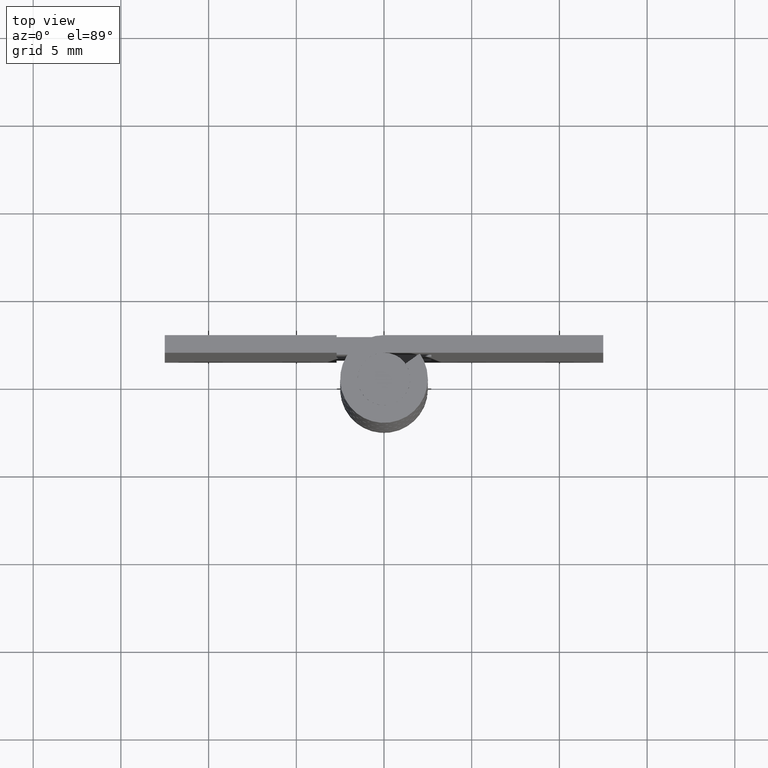
[diagram: clean part render]
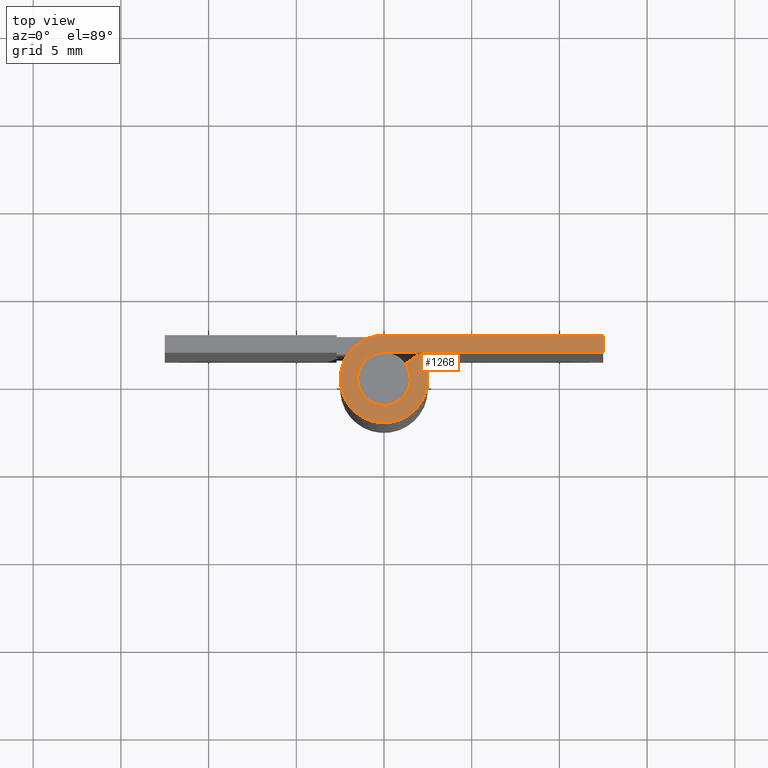
[diagram: same view with one face highlighted and labeled with its STEP entity id]
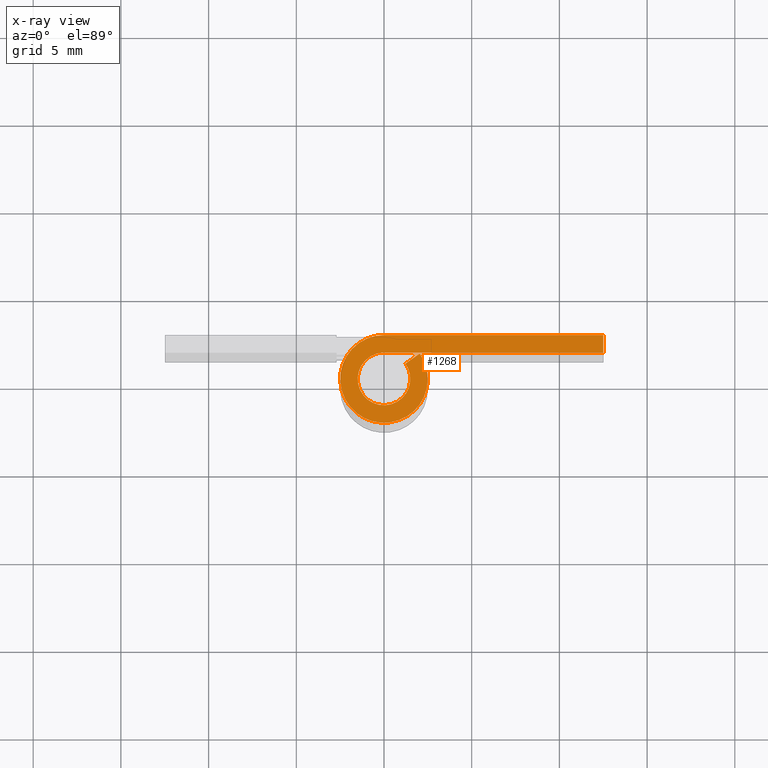
[diagram: x-ray of the same camera — body ghosted, the highlighted face saturated]
A machine part, top view. The second image highlights one B-rep face of the part: STEP entity #1268.
The next image is the same camera in x-ray: the body ghosted, the highlighted face saturated — about 0% of this face is hidden behind the body in this view.
In plain terms, the highlighted face is a freeform B-spline surface patch.
Its self-contained STEP definition (entity closure, byte-faithful):
#1191=CARTESIAN_POINT('',(-3.248181664563291,-2.745475684649778,33.0));
#1192=CARTESIAN_POINT('',(13.249199549952991,-2.745475684649778,33.0));
#1193=CARTESIAN_POINT('',(-3.248181664563291,2.749546779808365,33.0));
#1194=CARTESIAN_POINT('',(13.249199549952991,2.749546779808365,33.0));
#1195=B_SPLINE_SURFACE_WITH_KNOTS('',1,1,((#1191,#1193),(#1192,#1194)),.UNSPECIFIED.,.F.,.F.,.U.,(2,2),(2,2),(0.0,16.497381214516281),(0.0,5.495022464458143),.UNSPECIFIED.);
#1196=CARTESIAN_POINT('',(12.500000000000000,1.500000000000000,33.0));
#1197=VERTEX_POINT('',#1196);
#1198=CARTESIAN_POINT('',(12.500000000000000,2.500000000000000,33.0));
#1199=VERTEX_POINT('',#1198);
#1200=CARTESIAN_POINT('',(12.500000000000000,1.500000000000000,33.0));
#1201=CARTESIAN_POINT('',(12.500000000000000,2.500000000000000,33.0));
#1202=QUASI_UNIFORM_CURVE('',1,(#1200,#1201),.UNSPECIFIED.,.F.,.U.);
#1203=EDGE_CURVE('',#1197,#1199,#1202,.T.);
#1204=ORIENTED_EDGE('',*,*,#1203,.T.);
#1205=CARTESIAN_POINT('',(0.0,2.500000000000000,33.0));
#1206=VERTEX_POINT('',#1205);
#1207=CARTESIAN_POINT('',(12.500000000000000,2.500000000000000,33.0));
#1208=CARTESIAN_POINT('',(0.0,2.500000000000000,33.0));
#1209=QUASI_UNIFORM_CURVE('',1,(#1207,#1208),.UNSPECIFIED.,.F.,.U.);
#1210=EDGE_CURVE('',#1199,#1206,#1209,.T.);
#1211=ORIENTED_EDGE('',*,*,#1210,.T.);
#1212=CARTESIAN_POINT('',(2.036541185441630,1.450000000000000,33.0));
#1213=VERTEX_POINT('',#1212);
#1214=CARTESIAN_POINT('',(2.036541185441630,1.450000000000000,33.0));
#1215=CARTESIAN_POINT('',(3.176813295694007,-0.151524906992693,33.0));
#1216=CARTESIAN_POINT('',(1.889288151888372,-1.637250829633083,33.0));
#1217=CARTESIAN_POINT('',(0.601763008082737,-3.122976752273475,33.0));
#1218=CARTESIAN_POINT('',(-1.145643923738960,-2.222048604328898,33.0));
#1219=CARTESIAN_POINT('',(-2.893050855560658,-1.321120456384321,33.0));
#1220=CARTESIAN_POINT('',(-2.429518626273757,0.589439771807841,33.0));
#1221=CARTESIAN_POINT('',(-1.965986396986856,2.500000000000000,33.0));
#1222=CARTESIAN_POINT('',(0.0,2.500000000000000,33.0));
#1230=(BOUNDED_CURVE()B_SPLINE_CURVE(2,(#1214,#1215,#1216,#1217,#1218,#1219,#1220,#1221,#1222),.UNSPECIFIED.,.F.,.U.)B_SPLINE_CURVE_WITH_KNOTS((3,2,2,2,3),(0.0,0.250000000000000,0.500000000000000,0.750000000000000,1.0),.UNSPECIFIED.)CURVE()GEOMETRIC_REPRESENTATION_ITEM()RATIONAL_B_SPLINE_CURVE((1.0,0.786058492964466,1.0,0.786058492964466,1.0,0.786058492964466,1.0,0.786058492964466,1.0))REPRESENTATION_ITEM(''));
#1231=EDGE_CURVE('',#1213,#1206,#1230,.T.);
#1232=ORIENTED_EDGE('',*,*,#1231,.F.);
#1233=CARTESIAN_POINT('',(1.221924711264978,0.870000000000000,33.0));
#1234=VERTEX_POINT('',#1233);
#1235=CARTESIAN_POINT('',(2.036541185441630,1.450000000000000,33.0));
#1236=CARTESIAN_POINT('',(1.221924711264978,0.870000000000000,33.0));
#1237=QUASI_UNIFORM_CURVE('',1,(#1235,#1236),.UNSPECIFIED.,.F.,.U.);
#1238=EDGE_CURVE('',#1213,#1234,#1237,.T.);
#1239=ORIENTED_EDGE('',*,*,#1238,.T.);
#1240=CARTESIAN_POINT('',(-2.755364E-016,1.500000000000000,33.0));
#1241=VERTEX_POINT('',#1240);
#1242=CARTESIAN_POINT('',(1.221924711264978,0.870000000000000,33.0));
#1243=CARTESIAN_POINT('',(1.906087977416405,-0.090914944195615,33.0));
#1244=CARTESIAN_POINT('',(1.133572891133023,-0.982350497779850,33.0));
#1245=CARTESIAN_POINT('',(0.361057804849643,-1.873786051364085,33.0));
#1246=CARTESIAN_POINT('',(-0.687386354243376,-1.333229162597339,33.0));
#1247=CARTESIAN_POINT('',(-1.735830513336394,-0.792672273830592,33.0));
#1248=CARTESIAN_POINT('',(-1.457711175764254,0.353663863084705,33.0));
#1249=CARTESIAN_POINT('',(-1.179591838192113,1.500000000000001,33.0));
#1250=CARTESIAN_POINT('',(0.0,1.500000000000000,33.0));
#1258=(BOUNDED_CURVE()B_SPLINE_CURVE(2,(#1242,#1243,#1244,#1245,#1246,#1247,#1248,#1249,#1250),.UNSPECIFIED.,.F.,.U.)B_SPLINE_CURVE_WITH_KNOTS((3,2,2,2,3),(0.0,0.250000000000000,0.500000000000000,0.750000000000000,1.0),.UNSPECIFIED.)CURVE()GEOMETRIC_REPRESENTATION_ITEM()RATIONAL_B_SPLINE_CURVE((1.0,0.786058492964466,1.0,0.786058492964466,1.0,0.786058492964466,1.0,0.786058492964466,1.0))REPRESENTATION_ITEM(''));
#1259=EDGE_CURVE('',#1234,#1241,#1258,.T.);
#1260=ORIENTED_EDGE('',*,*,#1259,.T.);
#1261=CARTESIAN_POINT('',(-2.755364E-016,1.500000000000000,33.0));
#1262=CARTESIAN_POINT('',(12.500000000000000,1.500000000000000,33.0));
#1263=QUASI_UNIFORM_CURVE('',1,(#1261,#1262),.UNSPECIFIED.,.F.,.U.);
#1264=EDGE_CURVE('',#1241,#1197,#1263,.T.);
#1265=ORIENTED_EDGE('',*,*,#1264,.T.);
#1266=EDGE_LOOP('',(#1204,#1211,#1232,#1239,#1260,#1265));
#1267=FACE_OUTER_BOUND('',#1266,.T.);
#1268=ADVANCED_FACE('',(#1267),#1195,.T.);